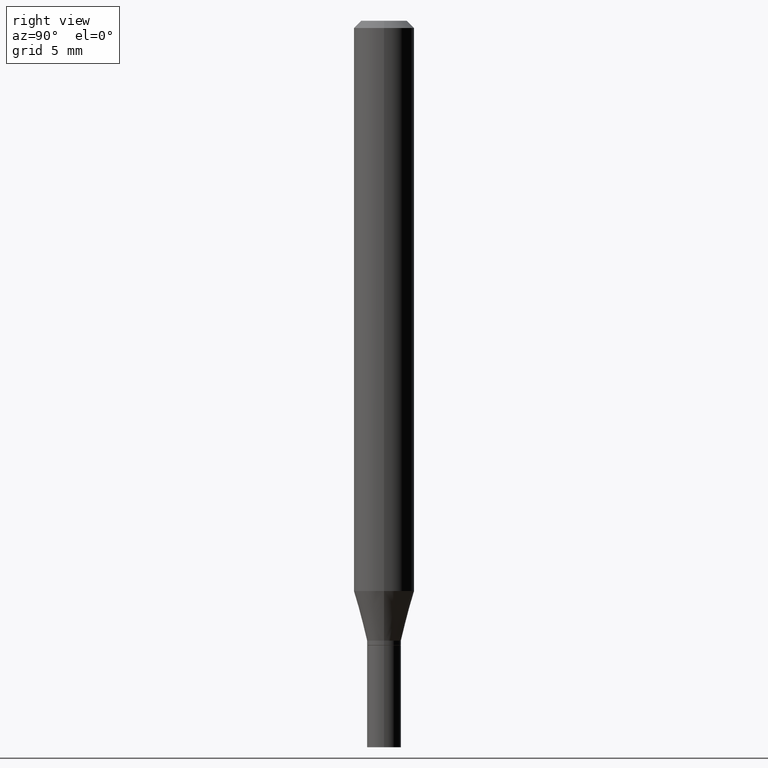
[diagram: clean part render]
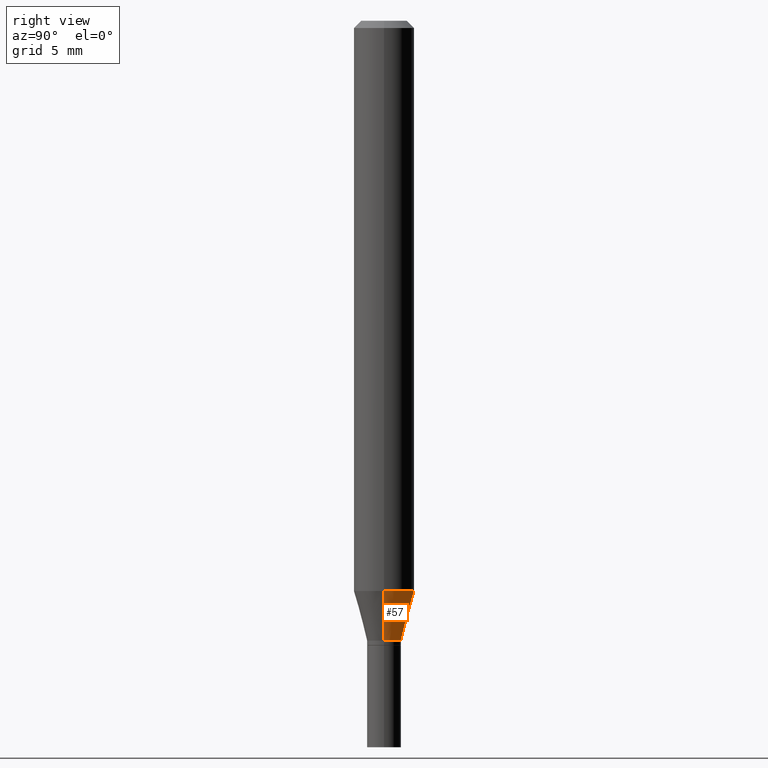
[diagram: same view with one face highlighted and labeled with its STEP entity id]
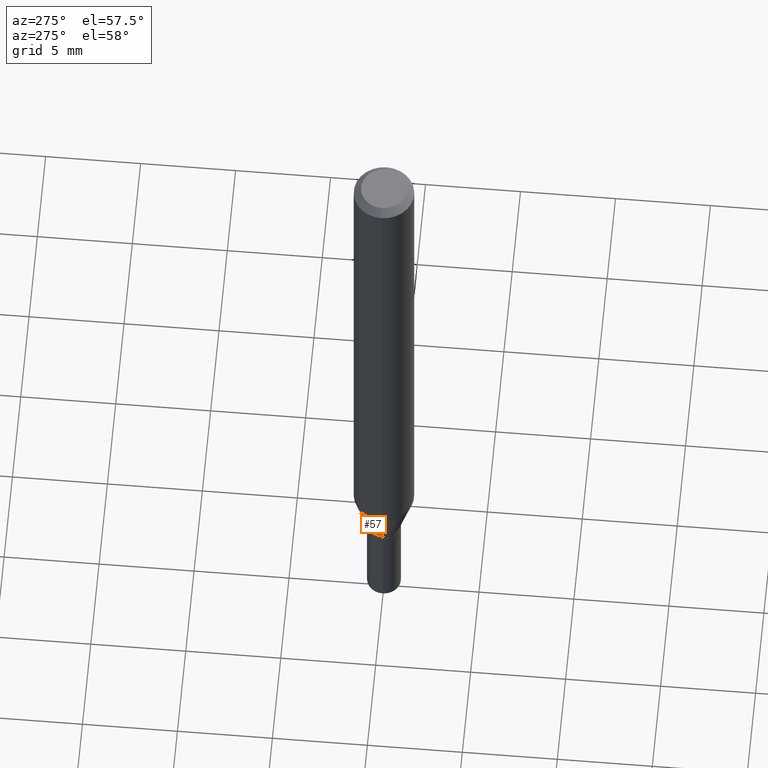
[diagram: same view with one face highlighted and labeled with its STEP entity id]
A machine part, right view. The second image highlights one B-rep face of the part: STEP entity #57.
A second angle (auxiliary view) of the same face is appended — the face is thin or edge-on in the first view.
In plain terms, the highlighted conical surface has half-angle 15 deg.
Its self-contained STEP definition (entity closure, byte-faithful):
#7 = CONICAL_SURFACE ( 'NONE', #195, 0.03499999999999992700, 0.2617993877991499629 ) ;
#29 = AXIS2_PLACEMENT_3D ( 'NONE', #329, #37, #254 ) ;
#33 = VERTEX_POINT ( 'NONE', #96 ) ;
#35 = DIRECTION ( 'NONE',  ( -2.445468806185136597E-29, 3.491481338843145583E-15, 1.000000000000000000 ) ) ;
#37 = DIRECTION ( 'NONE',  ( -2.445468806185136597E-29, 3.491481338843145583E-15, 1.000000000000000000 ) ) ;
#42 = CARTESIAN_POINT ( 'NONE',  ( -0.06250000000000000000, -3.666671295737530361E-15, -1.177368602791855734 ) ) ;
#55 = ORIENTED_EDGE ( 'NONE', *, *, #233, .F. ) ;
#57 = ADVANCED_FACE ( 'NONE', ( #306 ), #7, .T. ) ;
#63 = DIRECTION ( 'NONE',  ( -0.2588190451025212391, 5.211531920934549464E-15, 0.9659258262890679791 ) ) ;
#73 = VECTOR ( 'NONE', #63, 39.37007874015748854 ) ;
#96 = CARTESIAN_POINT ( 'NONE',  ( 0.03499999999999992700, -4.713499807438245807E-15, -1.280000000000000027 ) ) ;
#108 = CARTESIAN_POINT ( 'NONE',  ( 0.03499999999999992700, -4.713499807438245807E-15, -1.280000000000000027 ) ) ;
#135 = DIRECTION ( 'NONE',  ( -2.445468806185136597E-29, 3.491481338843145583E-15, 1.000000000000000000 ) ) ;
#155 = ORIENTED_EDGE ( 'NONE', *, *, #428, .T. ) ;
#179 = VERTEX_POINT ( 'NONE', #42 ) ;
#190 = EDGE_CURVE ( 'NONE', #265, #179, #362, .T. ) ;
#195 = AXIS2_PLACEMENT_3D ( 'NONE', #341, #135, #382 ) ;
#200 = VECTOR ( 'NONE', #225, 39.37007874015748854 ) ;
#218 = CARTESIAN_POINT ( 'NONE',  ( -0.03499999999999992700, -4.220406156203192133E-15, -1.280000000000000027 ) ) ;
#221 = CARTESIAN_POINT ( 'NONE',  ( 2.879218191509262057E-29, -4.110760505587592188E-15, -1.177368602791855734 ) ) ;
#225 = DIRECTION ( 'NONE',  ( 0.2588190451025212391, 1.565188264969622362E-15, 0.9659258262890679791 ) ) ;
#233 = EDGE_CURVE ( 'NONE', #33, #265, #321, .T. ) ;
#234 = AXIS2_PLACEMENT_3D ( 'NONE', #221, #35, #290 ) ;
#242 = EDGE_LOOP ( 'NONE', ( #276, #155, #320, #55 ) ) ;
#251 = LINE ( 'NONE', #218, #73 ) ;
#254 = DIRECTION ( 'NONE',  ( 1.000000000000000000, -6.982962677686264344E-15, 0.000000000000000000 ) ) ;
#265 = VERTEX_POINT ( 'NONE', #367 ) ;
#276 = ORIENTED_EDGE ( 'NONE', *, *, #289, .T. ) ;
#289 = EDGE_CURVE ( 'NONE', #33, #433, #353, .T. ) ;
#290 = DIRECTION ( 'NONE',  ( 1.000000000000000000, -6.982962677686270655E-15, 0.000000000000000000 ) ) ;
#306 = FACE_OUTER_BOUND ( 'NONE', #242, .T. ) ;
#320 = ORIENTED_EDGE ( 'NONE', *, *, #190, .F. ) ;
#321 = LINE ( 'NONE', #108, #200 ) ;
#329 = CARTESIAN_POINT ( 'NONE',  ( 3.130200071916974821E-29, -4.469096113719226630E-15, -1.280000000000000027 ) ) ;
#341 = CARTESIAN_POINT ( 'NONE',  ( 3.130200071916974821E-29, -4.469096113719226630E-15, -1.280000000000000027 ) ) ;
#353 = CIRCLE ( 'NONE', #29, 0.03499999999999992700 ) ;
#362 = CIRCLE ( 'NONE', #234, 0.06250000000000000000 ) ;
#367 = CARTESIAN_POINT ( 'NONE',  ( 0.06250000000000000000, -4.547195672942984647E-15, -1.177368602791855734 ) ) ;
#382 = DIRECTION ( 'NONE',  ( 1.000000000000000000, -6.982962677686264344E-15, 0.000000000000000000 ) ) ;
#394 = CARTESIAN_POINT ( 'NONE',  ( -0.03499999999999992700, -3.943538725970360852E-15, -1.280000000000000027 ) ) ;
#428 = EDGE_CURVE ( 'NONE', #433, #179, #251, .T. ) ;
#433 = VERTEX_POINT ( 'NONE', #394 ) ;